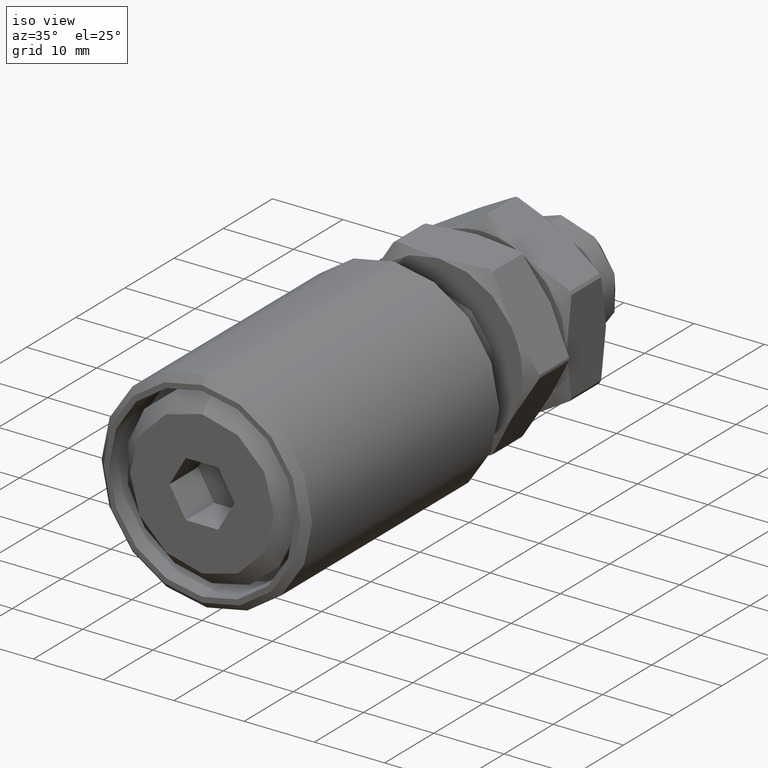
[diagram: clean part render]
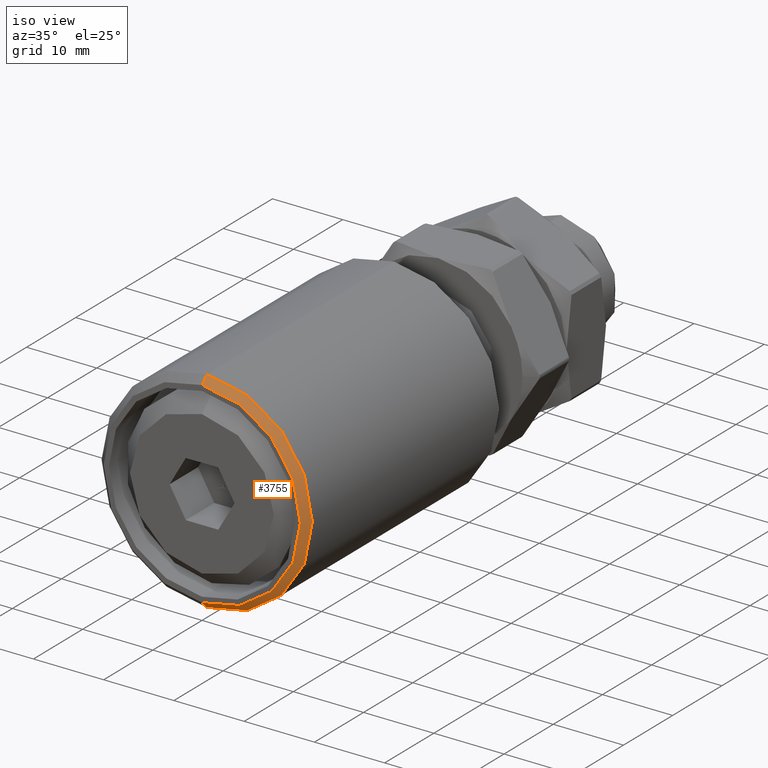
[diagram: same view with one face highlighted and labeled with its STEP entity id]
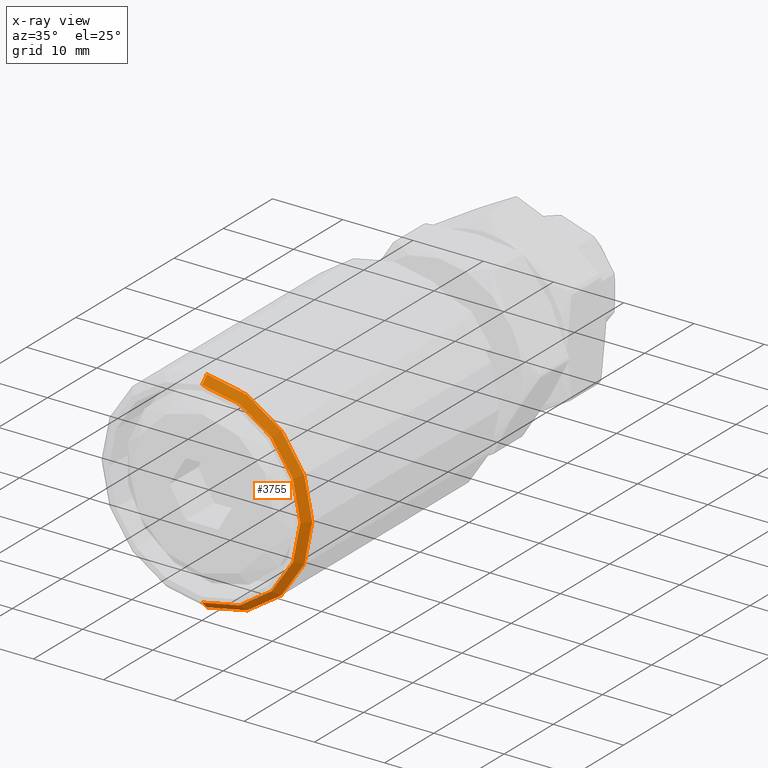
[diagram: x-ray of the same camera — body ghosted, the highlighted face saturated]
A machine part, iso view. The second image highlights one B-rep face of the part: STEP entity #3755.
The next image is the same camera in x-ray: the body ghosted, the highlighted face saturated — about 0% of this face is hidden behind the body in this view.
In plain terms, the highlighted conical surface has half-angle 45 deg.
Its self-contained STEP definition (entity closure, byte-faithful):
#184 = LINE ( 'NONE', #14182, #5242 ) ;
#755 = CIRCLE ( 'NONE', #5371, 14.00000000000001243 ) ;
#2024 = EDGE_LOOP ( 'NONE', ( #9900, #10847, #3990, #4946 ) ) ;
#2328 = LINE ( 'NONE', #8651, #3693 ) ;
#2412 = DIRECTION ( 'NONE',  ( 0.000000000000000000, 0.7071067811865487940, 0.7071067811865463515 ) ) ;
#3032 = DIRECTION ( 'NONE',  ( 0.000000000000000000, 1.000000000000000000, 0.000000000000000000 ) ) ;
#3599 = VERTEX_POINT ( 'NONE', #4354 ) ;
#3693 = VECTOR ( 'NONE', #2412, 1000.000000000000000 ) ;
#3755 = ADVANCED_FACE ( 'NONE', ( #6060 ), #15286, .T. ) ;
#3990 = ORIENTED_EDGE ( 'NONE', *, *, #8318, .F. ) ;
#4214 = CARTESIAN_POINT ( 'NONE',  ( 0.000000000000000000, -2.755455298081544285E-16, 14.00000000000001243 ) ) ;
#4354 = CARTESIAN_POINT ( 'NONE',  ( 1.775737858763663198E-15, -2.755455298081544285E-16, -14.00000000000001243 ) ) ;
#4946 = ORIENTED_EDGE ( 'NONE', *, *, #6265, .F. ) ;
#5242 = VECTOR ( 'NONE', #11613, 1000.000000000000000 ) ;
#5371 = AXIS2_PLACEMENT_3D ( 'NONE', #10950, #12053, #13479 ) ;
#5414 = EDGE_CURVE ( 'NONE', #3599, #14442, #184, .T. ) ;
#6060 = FACE_OUTER_BOUND ( 'NONE', #2024, .T. ) ;
#6265 = EDGE_CURVE ( 'NONE', #6403, #10999, #2328, .T. ) ;
#6403 = VERTEX_POINT ( 'NONE', #4214 ) ;
#6457 = AXIS2_PLACEMENT_3D ( 'NONE', #11663, #7838, #11716 ) ;
#7838 = DIRECTION ( 'NONE',  ( 0.000000000000000000, 1.000000000000000000, 0.000000000000000000 ) ) ;
#8060 = CARTESIAN_POINT ( 'NONE',  ( 0.000000000000000000, -2.755455298081544285E-16, 0.000000000000000000 ) ) ;
#8318 = EDGE_CURVE ( 'NONE', #10999, #14442, #15611, .T. ) ;
#8651 = CARTESIAN_POINT ( 'NONE',  ( 0.000000000000000000, -2.755455298081544285E-16, 14.00000000000001243 ) ) ;
#9769 = AXIS2_PLACEMENT_3D ( 'NONE', #8060, #3032, #10572 ) ;
#9900 = ORIENTED_EDGE ( 'NONE', *, *, #15203, .F. ) ;
#10572 = DIRECTION ( 'NONE',  ( 0.000000000000000000, 0.000000000000000000, 1.000000000000000000 ) ) ;
#10847 = ORIENTED_EDGE ( 'NONE', *, *, #5414, .T. ) ;
#10873 = CARTESIAN_POINT ( 'NONE',  ( 0.000000000000000000, 0.9999999999999954481, -15.00000000000000533 ) ) ;
#10950 = CARTESIAN_POINT ( 'NONE',  ( 0.000000000000000000, -2.755455298081544285E-16, 0.000000000000000000 ) ) ;
#10999 = VERTEX_POINT ( 'NONE', #14255 ) ;
#11613 = DIRECTION ( 'NONE',  ( 8.659560562354919300E-17, 0.7071067811865487940, -0.7071067811865463515 ) ) ;
#11663 = CARTESIAN_POINT ( 'NONE',  ( 0.000000000000000000, 0.9999999999999954481, 0.000000000000000000 ) ) ;
#11716 = DIRECTION ( 'NONE',  ( 0.000000000000000000, 0.000000000000000000, -1.000000000000000000 ) ) ;
#12053 = DIRECTION ( 'NONE',  ( -0.000000000000000000, -1.000000000000000000, -0.000000000000000000 ) ) ;
#13479 = DIRECTION ( 'NONE',  ( 0.000000000000000000, 0.000000000000000000, -1.000000000000000000 ) ) ;
#14182 = CARTESIAN_POINT ( 'NONE',  ( 1.714505518806296018E-15, -2.755455298081544285E-16, -14.00000000000001243 ) ) ;
#14255 = CARTESIAN_POINT ( 'NONE',  ( 1.836970198721030378E-15, 0.9999999999999954481, 15.00000000000000533 ) ) ;
#14442 = VERTEX_POINT ( 'NONE', #10873 ) ;
#15203 = EDGE_CURVE ( 'NONE', #3599, #6403, #755, .T. ) ;
#15286 = CONICAL_SURFACE ( 'NONE', #9769, 14.00000000000001243, 0.7853981633974466137 ) ;
#15611 = CIRCLE ( 'NONE', #6457, 15.00000000000000533 ) ;